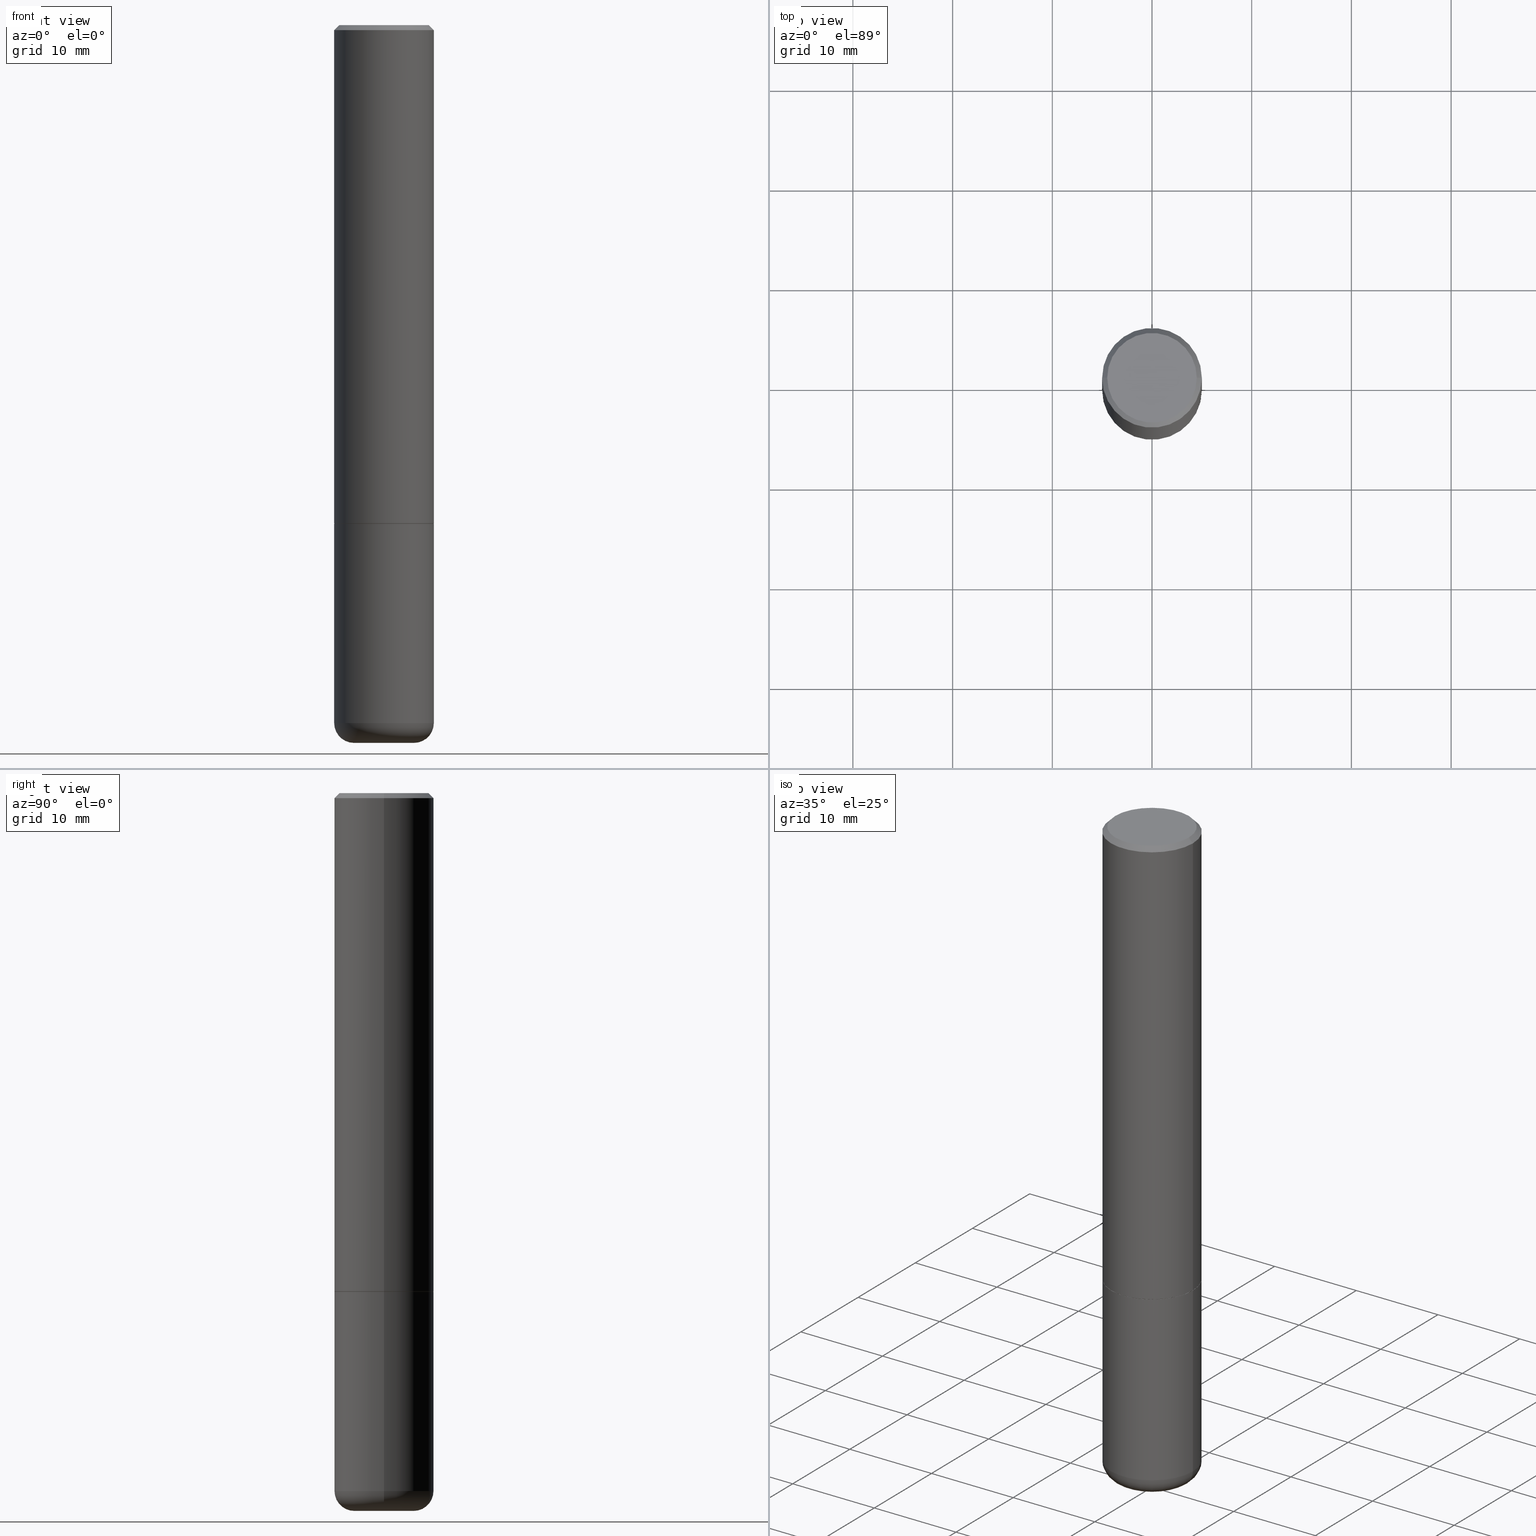
[diagram: canonical four-view strip — front | top / right | iso, engineering-drawing reading convention]
A machine part, canonical four-view strip (front | top / right | iso — engineering-drawing reading convention). The complete STEP part file that produces these views, byte-faithful:
ISO-10303-21;
HEADER;
FILE_DESCRIPTION (( 'STEP AP203' ),
    '1' );
FILE_NAME ('47014.STEP',
    '2024-03-05T11:18:33',
    ( '' ),
    ( '' ),
    'SwSTEP 2.0',
    'SolidWorks 2023',
    '' );
FILE_SCHEMA (( 'CONFIG_CONTROL_DESIGN' ));
ENDSEC;

DATA;
#1 = FACE_OUTER_BOUND ( 'NONE', #279, .T. ) ;
#2 = CLOSED_SHELL ( 'NONE', ( #265, #116, #124, #92, #5, #361, #45, #389 ) ) ;
#3 = CIRCLE ( 'NONE', #354, 0.07869999999999996443 ) ;
#4 = DIRECTION ( 'NONE',  ( -2.445468806185136597E-29, 3.491481338843145583E-15, 1.000000000000000000 ) ) ;
#5 = ADVANCED_FACE ( 'NONE', ( #127 ), #247, .T. ) ;
#6 = CARTESIAN_POINT ( 'NONE',  ( -0.1181500000000000050, -8.782667179417266182E-15, -2.755900000000000016 ) ) ;
#7 = CARTESIAN_POINT ( 'NONE',  ( -0.1968500000000002192, -2.070956205131615845E-15, -1.967500000000000027 ) ) ;
#8 = CIRCLE ( 'NONE', #19, 0.1181500000000000189 ) ;
#9 = APPROVAL_PERSON_ORGANIZATION ( #214, #135, #246 ) ;
#10 = CARTESIAN_POINT ( 'NONE',  ( -0.1958499999999999963, -5.481383067526576505E-15, -1.968500000000000361 ) ) ;
#11 = CONICAL_SURFACE ( 'NONE', #141, 0.1958499999999999963, 0.7853981633973801113 ) ;
#12 = EDGE_CURVE ( 'NONE', #13, #322, #226, .T. ) ;
#13 = VERTEX_POINT ( 'NONE', #250 ) ;
#14 = DIRECTION ( 'NONE',  ( -2.445468806185136877E-29, 3.491481338843145188E-15, 1.000000000000000000 ) ) ;
#15 = ORIENTED_EDGE ( 'NONE', *, *, #261, .T. ) ;
#16 = MANIFOLD_SOLID_BREP ( 'Body-Move/Copy2[2]', #2 ) ;
#17 = DIRECTION ( 'NONE',  ( -6.982962677686266711E-15, -1.000000000000000000, 3.491481338843145583E-15 ) ) ;
#18 = DIRECTION ( 'NONE',  ( -2.445468806185136597E-29, 3.491481338843145583E-15, 1.000000000000000000 ) ) ;
#19 = AXIS2_PLACEMENT_3D ( 'NONE', #300, #138, #68 ) ;
#20 = AXIS2_PLACEMENT_3D ( 'NONE', #235, #18, #398 ) ;
#21 = EDGE_LOOP ( 'NONE', ( #95, #149 ) ) ;
#22 = DIRECTION ( 'NONE',  ( -1.000000000000000000, 6.982962677686265922E-15, -4.876176775795935793E-29 ) ) ;
#23 = ORIENTED_EDGE ( 'NONE', *, *, #353, .T. ) ;
#24 = DIRECTION ( 'NONE',  ( 2.438088387897960049E-29, -3.491481338843145188E-15, -1.000000000000000000 ) ) ;
#25 = DIRECTION ( 'NONE',  ( 1.000000000000000000, -6.982962677686266711E-15, 4.876176775795935793E-29 ) ) ;
#26 = EDGE_CURVE ( 'NONE', #60, #158, #374, .T. ) ;
#27 = ORIENTED_EDGE ( 'NONE', *, *, #224, .T. ) ;
#28 = CALENDAR_DATE ( 2024, 5, 3 ) ;
#29 = EDGE_LOOP ( 'NONE', ( #185, #83, #286, #307 ) ) ;
#30 = EDGE_CURVE ( 'NONE', #215, #101, #392, .T. ) ;
#31 = PERSON_AND_ORGANIZATION ( #313, #260 ) ;
#32 = DIRECTION ( 'NONE',  ( 1.000000000000000000, -6.982962677686265922E-15, 4.876176775795935793E-29 ) ) ;
#33 = CIRCLE ( 'NONE', #91, 0.1968500000000000250 ) ;
#34 = CARTESIAN_POINT ( 'NONE',  ( -0.1968500000000000250, 1.304766576325678705E-15, -0.02000000000000004205 ) ) ;
#35 = CALENDAR_DATE ( 2024, 5, 3 ) ;
#36 = DIRECTION ( 'NONE',  ( 2.445468806185136597E-29, -3.491481338843145583E-15, -1.000000000000000000 ) ) ;
#37 = PERSON_AND_ORGANIZATION ( #313, #260 ) ;
#38 = CARTESIAN_POINT ( 'NONE',  ( 4.811459876169256232E-29, -6.869489534173888700E-15, -1.967500000000000027 ) ) ;
#39 = EDGE_CURVE ( 'NONE', #373, #255, #40, .T. ) ;
#40 = CIRCLE ( 'NONE', #258, 0.1968500000000002192 ) ;
#41 =( GEOMETRIC_REPRESENTATION_CONTEXT ( 3 ) GLOBAL_UNCERTAINTY_ASSIGNED_CONTEXT ( ( #251 ) ) GLOBAL_UNIT_ASSIGNED_CONTEXT ( ( #345, #276, #405 ) ) REPRESENTATION_CONTEXT ( 'NONE', 'WORKASPACE' ) );
#42 = DATE_TIME_ROLE ( 'classification_date' ) ;
#43 = LINE ( 'NONE', #383, #76 ) ;
#44 = DIRECTION ( 'NONE',  ( 0.7071067811865462405, -7.319954787623251312E-15, -0.7071067811865486830 ) ) ;
#45 = ADVANCED_FACE ( 'NONE', ( #1 ), #363, .F. ) ;
#46 = CARTESIAN_POINT ( 'NONE',  ( 6.739467482965618232E-29, -9.622173421717824390E-15, -2.755900000000000016 ) ) ;
#47 = VERTEX_POINT ( 'NONE', #390 ) ;
#48 = VECTOR ( 'NONE', #225, 39.37007874015748143 ) ;
#49 = LINE ( 'NONE', #331, #193 ) ;
#50 = DIRECTION ( 'NONE',  ( -2.445468806185136597E-29, 3.491481338843145583E-15, 1.000000000000000000 ) ) ;
#51 = EDGE_CURVE ( 'NONE', #158, #60, #111, .T. ) ;
#52 = CARTESIAN_POINT ( 'NONE',  ( 6.931925878012387517E-29, -9.896953003084780885E-15, -2.834600000000000009 ) ) ;
#53 = FACE_OUTER_BOUND ( 'NONE', #66, .T. ) ;
#54 = AXIS2_PLACEMENT_3D ( 'NONE', #6, #139, #292 ) ;
#55 = ORIENTED_EDGE ( 'NONE', *, *, #261, .F. ) ;
#56 = APPROVAL_STATUS ( 'not_yet_approved' ) ;
#57 = ORIENTED_EDGE ( 'NONE', *, *, #229, .T. ) ;
#58 = APPROVAL ( #194, 'UNSPECIFIED' ) ;
#59 = PERSON_AND_ORGANIZATION_ROLE ( 'design_owner' ) ;
#60 = VERTEX_POINT ( 'NONE', #163 ) ;
#61 = ORIENTED_EDGE ( 'NONE', *, *, #79, .T. ) ;
#62 = CIRCLE ( 'NONE', #416, 0.1968500000000002192 ) ;
#63 = COORDINATED_UNIVERSAL_TIME_OFFSET ( 5, 0, .BEHIND. ) ;
#64 = ORIENTED_EDGE ( 'NONE', *, *, #26, .T. ) ;
#65 = PRODUCT_DEFINITION ( 'UNKNOWN', '', #381, #170 ) ;
#66 = EDGE_LOOP ( 'NONE', ( #171, #57 ) ) ;
#67 = PERSON_AND_ORGANIZATION_ROLE ( 'classification_officer' ) ;
#68 = DIRECTION ( 'NONE',  ( 1.000000000000000000, -6.982962677686265922E-15, 0.000000000000000000 ) ) ;
#69 = AXIS2_PLACEMENT_3D ( 'NONE', #134, #356, #325 ) ;
#70 = CC_DESIGN_SECURITY_CLASSIFICATION ( #311, ( #381 ) ) ;
#71 = CYLINDRICAL_SURFACE ( 'NONE', #306, 0.1968500000000000250 ) ;
#72 = EDGE_CURVE ( 'NONE', #47, #394, #8, .T. ) ;
#73 = CARTESIAN_POINT ( 'NONE',  ( 0.1968500000000001082, -1.374596203102542397E-15, 9.598753983154305062E-30 ) ) ;
#74 = CALENDAR_DATE ( 2024, 5, 3 ) ;
#75 = FACE_OUTER_BOUND ( 'NONE', #402, .T. ) ;
#76 = VECTOR ( 'NONE', #302, 39.37007874015748143 ) ;
#77 = TOROIDAL_SURFACE ( 'NONE', #84, 0.1181500000000000050, 0.07869999999999995055 ) ;
#78 = CARTESIAN_POINT ( 'NONE',  ( 0.000000000000000000, 0.000000000000000000, 0.000000000000000000 ) ) ;
#79 = EDGE_CURVE ( 'NONE', #215, #217, #43, .T. ) ;
#80 = FACE_OUTER_BOUND ( 'NONE', #244, .T. ) ;
#81 = ORIENTED_EDGE ( 'NONE', *, *, #287, .F. ) ;
#82 = CARTESIAN_POINT ( 'NONE',  ( -0.1968500000000000250, -6.848873843271521050E-15, -1.968500000000000139 ) ) ;
#83 = ORIENTED_EDGE ( 'NONE', *, *, #280, .T. ) ;
#84 = AXIS2_PLACEMENT_3D ( 'NONE', #46, #115, #365 ) ;
#85 = DIRECTION ( 'NONE',  ( -2.445468806185136597E-29, 3.491481338843145583E-15, 1.000000000000000000 ) ) ;
#86 = FACE_OUTER_BOUND ( 'NONE', #21, .T. ) ;
#87 = ADVANCED_FACE ( 'NONE', ( #75 ), #273, .T. ) ;
#88 = APPROVAL_DATE_TIME ( #254, #135 ) ;
#89 = AXIS2_PLACEMENT_3D ( 'NONE', #296, #136, #259 ) ;
#90 = ORIENTED_EDGE ( 'NONE', *, *, #229, .F. ) ;
#91 = AXIS2_PLACEMENT_3D ( 'NONE', #275, #168, #143 ) ;
#92 = ADVANCED_FACE ( 'NONE', ( #327 ), #231, .T. ) ;
#93 = LINE ( 'NONE', #412, #301 ) ;
#94 = ORIENTED_EDGE ( 'NONE', *, *, #12, .T. ) ;
#95 = ORIENTED_EDGE ( 'NONE', *, *, #338, .F. ) ;
#96 = APPLICATION_PROTOCOL_DEFINITION ( 'international standard', 'config_control_design', 1994, #130 ) ;
#97 = EDGE_CURVE ( 'NONE', #373, #60, #102, .T. ) ;
#98 = ORIENTED_EDGE ( 'NONE', *, *, #97, .T. ) ;
#99 = AXIS2_PLACEMENT_3D ( 'NONE', #352, #330, #167 ) ;
#100 = APPROVAL_PERSON_ORGANIZATION ( #283, #148, #219 ) ;
#101 = VERTEX_POINT ( 'NONE', #262 ) ;
#102 = LINE ( 'NONE', #73, #48 ) ;
#103 = DIRECTION ( 'NONE',  ( -1.000000000000000000, 6.982962677686265922E-15, -4.876176775795935793E-29 ) ) ;
#104 = AXIS2_PLACEMENT_3D ( 'NONE', #191, #36, #328 ) ;
#105 = ADVANCED_FACE ( 'NONE', ( #109 ), #71, .T. ) ;
#106 = CARTESIAN_POINT ( 'NONE',  ( 6.739467482965618232E-29, -9.622173421717824390E-15, -2.755900000000000016 ) ) ;
#107 = PRODUCT ( '47014', '47014', '', ( #216 ) ) ;
#108 = DATE_AND_TIME ( #35, #213 ) ;
#109 = FACE_OUTER_BOUND ( 'NONE', #346, .T. ) ;
#110 = DIRECTION ( 'NONE',  ( -2.445468806185136597E-29, 3.491481338843145583E-15, 1.000000000000000000 ) ) ;
#111 = CIRCLE ( 'NONE', #177, 0.1968500000000000250 ) ;
#112 = AXIS2_PLACEMENT_3D ( 'NONE', #272, #50, #120 ) ;
#113 = DIRECTION ( 'NONE',  ( 1.000000000000000000, -6.982962677686265922E-15, 0.000000000000000000 ) ) ;
#114 = CARTESIAN_POINT ( 'NONE',  ( 0.000000000000000000, 0.000000000000000000, 0.000000000000000000 ) ) ;
#115 = DIRECTION ( 'NONE',  ( -2.445468806185136597E-29, 3.491481338843145583E-15, 1.000000000000000000 ) ) ;
#116 = ADVANCED_FACE ( 'NONE', ( #196 ), #257, .T. ) ;
#117 = AXIS2_PLACEMENT_3D ( 'NONE', #385, #256, #32 ) ;
#118 = AXIS2_PLACEMENT_3D ( 'NONE', #377, #249, #179 ) ;
#119 = CARTESIAN_POINT ( 'NONE',  ( -2.922783960138615261E-45, 4.172960877065252270E-31, 1.195183497228115035E-16 ) ) ;
#120 = DIRECTION ( 'NONE',  ( 1.000000000000000000, -6.982962677686266711E-15, 4.879147720081023088E-29 ) ) ;
#121 = ORIENTED_EDGE ( 'NONE', *, *, #297, .T. ) ;
#122 = PERSON_AND_ORGANIZATION ( #313, #260 ) ;
#123 = ORIENTED_EDGE ( 'NONE', *, *, #314, .F. ) ;
#124 = ADVANCED_FACE ( 'NONE', ( #164 ), #407, .T. ) ;
#125 = DIRECTION ( 'NONE',  ( -2.445468806185136597E-29, 3.491481338843145583E-15, 1.000000000000000000 ) ) ;
#126 = DIRECTION ( 'NONE',  ( 0.7071067811864992780, -2.468850131081751401E-15, 0.7071067811865957564 ) ) ;
#127 = FACE_OUTER_BOUND ( 'NONE', #147, .T. ) ;
#128 = PERSON_AND_ORGANIZATION ( #313, #260 ) ;
#129 = ORIENTED_EDGE ( 'NONE', *, *, #321, .F. ) ;
#130 = APPLICATION_CONTEXT ( 'configuration controlled 3d designs of mechanical parts and assemblies' ) ;
#131 = COORDINATED_UNIVERSAL_TIME_OFFSET ( 5, 0, .BEHIND. ) ;
#132 = EDGE_LOOP ( 'NONE', ( #397, #344, #15, #129 ) ) ;
#133 = DIRECTION ( 'NONE',  ( -2.445468806185136597E-29, 3.491481338843145583E-15, 1.000000000000000000 ) ) ;
#134 = CARTESIAN_POINT ( 'NONE',  ( 4.890937612370283668E-31, -6.982962677686305168E-17, -0.02000000000000004205 ) ) ;
#135 = APPROVAL ( #56, 'UNSPECIFIED' ) ;
#136 = DIRECTION ( 'NONE',  ( -2.445468806185136597E-29, 3.491481338843145583E-15, 1.000000000000000000 ) ) ;
#137 = AXIS2_PLACEMENT_3D ( 'NONE', #319, #315, #312 ) ;
#138 = DIRECTION ( 'NONE',  ( -2.445468806185136597E-29, 3.491481338843145583E-15, 1.000000000000000000 ) ) ;
#139 = DIRECTION ( 'NONE',  ( 7.105427357601001859E-15, 1.000000000000000000, -3.491481338843145583E-15 ) ) ;
#140 = CARTESIAN_POINT ( 'NONE',  ( 4.813905344975441835E-29, -6.872981015512731707E-15, -1.968500000000000139 ) ) ;
#141 = AXIS2_PLACEMENT_3D ( 'NONE', #367, #85, #207 ) ;
#142 = CARTESIAN_POINT ( 'NONE',  ( -0.1968500000000000250, 1.398703375343757393E-15, -9.682923725166783677E-30 ) ) ;
#143 = DIRECTION ( 'NONE',  ( 1.000000000000000000, -6.982962677686267499E-15, 0.000000000000000000 ) ) ;
#144 = EDGE_CURVE ( 'NONE', #47, #101, #340, .T. ) ;
#145 = LINE ( 'NONE', #142, #184 ) ;
#146 = DIRECTION ( 'NONE',  ( -2.445468806185136597E-29, 3.491481338843145583E-15, 1.000000000000000000 ) ) ;
#147 = EDGE_LOOP ( 'NONE', ( #415, #23, #98, #211 ) ) ;
#148 = APPROVAL ( #409, 'UNSPECIFIED' ) ;
#149 = ORIENTED_EDGE ( 'NONE', *, *, #72, .F. ) ;
#150 = DIRECTION ( 'NONE',  ( -1.000000000000000000, 6.982962677686265922E-15, -4.876176775795935793E-29 ) ) ;
#151 = ORIENTED_EDGE ( 'NONE', *, *, #51, .T. ) ;
#152 = CIRCLE ( 'NONE', #386, 0.1968500000000000250 ) ;
#153 = PLANE ( 'NONE',  #341 ) ;
#154 = LOCAL_TIME ( 6, 18, 33.00000000000000000, #288 ) ;
#155 = ORIENTED_EDGE ( 'NONE', *, *, #204, .F. ) ;
#156 = MANIFOLD_SOLID_BREP ( 'Body-Move/Copy2[1]', #253 ) ;
#157 = LENGTH_MEASURE_WITH_UNIT ( LENGTH_MEASURE( 0.02539999999999999897 ), #342 );
#158 = VERTEX_POINT ( 'NONE', #34 ) ;
#159 = DATE_AND_TIME ( #28, #324 ) ;
#160 = EDGE_LOOP ( 'NONE', ( #90, #336, #64, #404 ) ) ;
#161 = DIRECTION ( 'NONE',  ( 1.000000000000000000, -6.982962677686265922E-15, 0.000000000000000000 ) ) ;
#162 = CARTESIAN_POINT ( 'NONE',  ( 4.890937612370283668E-31, -6.982962677686305168E-17, -0.02000000000000004205 ) ) ;
#163 = CARTESIAN_POINT ( 'NONE',  ( 0.1968500000000000250, -1.420318657638189122E-15, -0.02000000000000004205 ) ) ;
#164 = FACE_OUTER_BOUND ( 'NONE', #160, .T. ) ;
#165 = CC_DESIGN_APPROVAL ( #148, ( #65 ) ) ;
#166 = PRODUCT_RELATED_PRODUCT_CATEGORY ( 'detail', '', ( #107 ) ) ;
#167 = DIRECTION ( 'NONE',  ( 1.000000000000000000, -6.982962677686266711E-15, 4.876176775795935793E-29 ) ) ;
#168 = DIRECTION ( 'NONE',  ( -2.445468806185136597E-29, 3.491481338843145583E-15, 1.000000000000000000 ) ) ;
#169 = DIRECTION ( 'NONE',  ( 1.000000000000000000, -6.982962677686266711E-15, 4.879147720081023088E-29 ) ) ;
#170 = DESIGN_CONTEXT ( 'detailed design', #130, 'design' ) ;
#171 = ORIENTED_EDGE ( 'NONE', *, *, #234, .T. ) ;
#172 = AXIS2_PLACEMENT_3D ( 'NONE', #228, #388, #230 ) ;
#173 = CARTESIAN_POINT ( 'NONE',  ( -0.1968500000000001082, 1.398703375343757985E-15, -9.682923725166787881E-30 ) ) ;
#174 = LINE ( 'NONE', #10, #274 ) ;
#175 = DIRECTION ( 'NONE',  ( 2.438088387897960049E-29, -3.491481338843145188E-15, -1.000000000000000000 ) ) ;
#176 = CC_DESIGN_PERSON_AND_ORGANIZATION_ASSIGNMENT ( #128, #59, ( #107 ) ) ;
#177 = AXIS2_PLACEMENT_3D ( 'NONE', #162, #4, #418 ) ;
#178 = VECTOR ( 'NONE', #14, 39.37007874015748143 ) ;
#179 = DIRECTION ( 'NONE',  ( 1.000000000000000000, 0.000000000000000000, 0.000000000000000000 ) ) ;
#180 = ORIENTED_EDGE ( 'NONE', *, *, #30, .T. ) ;
#181 = APPLICATION_PROTOCOL_DEFINITION ( 'international standard', 'config_control_design', 1994, #285 ) ;
#182 = ORIENTED_EDGE ( 'NONE', *, *, #372, .F. ) ;
#183 = DATE_AND_TIME ( #403, #154 ) ;
#184 = VECTOR ( 'NONE', #393, 39.37007874015748143 ) ;
#185 = ORIENTED_EDGE ( 'NONE', *, *, #39, .T. ) ;
#186 = ADVANCED_FACE ( 'NONE', ( #417 ), #263, .F. ) ;
#187 = CARTESIAN_POINT ( 'NONE',  ( 0.1968500000000002192, -8.244085737276431886E-15, -1.967500000000000027 ) ) ;
#188 = EDGE_LOOP ( 'NONE', ( #123, #317, #121, #151 ) ) ;
#189 = PERSON_AND_ORGANIZATION ( #313, #260 ) ;
#190 = VERTEX_POINT ( 'NONE', #227 ) ;
#191 = CARTESIAN_POINT ( 'NONE',  ( 4.890937612370283668E-31, -6.982962677686305168E-17, -0.02000000000000004205 ) ) ;
#192 = CIRCLE ( 'NONE', #137, 0.1968500000000000250 ) ;
#193 = VECTOR ( 'NONE', #44, 39.37007874015748854 ) ;
#194 = APPROVAL_STATUS ( 'not_yet_approved' ) ;
#195 = PRODUCT_DEFINITION_SHAPE ( 'NONE', 'NONE',  #65 ) ;
#196 = FACE_OUTER_BOUND ( 'NONE', #29, .T. ) ;
#197 = COORDINATED_UNIVERSAL_TIME_OFFSET ( 5, 0, .BEHIND. ) ;
#198 = DIRECTION ( 'NONE',  ( 1.000000000000000000, -6.982962677686265922E-15, 4.876176775795935793E-29 ) ) ;
#199 = SHAPE_DEFINITION_REPRESENTATION ( #195, #281 ) ;
#200 = DIRECTION ( 'NONE',  ( -2.445468806185136597E-29, 3.491481338843145583E-15, 1.000000000000000000 ) ) ;
#201 = CC_DESIGN_APPROVAL ( #58, ( #311 ) ) ;
#202 = CARTESIAN_POINT ( 'NONE',  ( -0.1968500000000000250, 1.304766576325678705E-15, -0.02000000000000004205 ) ) ;
#203 = CYLINDRICAL_SURFACE ( 'NONE', #291, 0.1968500000000000250 ) ;
#204 = EDGE_CURVE ( 'NONE', #322, #13, #335, .T. ) ;
#205 = LINE ( 'NONE', #202, #375 ) ;
#206 = CIRCLE ( 'NONE', #368, 0.1768499999999999239 ) ;
#207 = DIRECTION ( 'NONE',  ( 1.000000000000000000, -6.982962677686268288E-15, 0.000000000000000000 ) ) ;
#208 = PLANE ( 'NONE',  #282 ) ;
#209 = CC_DESIGN_PERSON_AND_ORGANIZATION_ASSIGNMENT ( #31, #351, ( #381 ) ) ;
#210 = CARTESIAN_POINT ( 'NONE',  ( 1.234936949548815604E-15, 0.1768499999999999239, -5.577092999130041947E-16 ) ) ;
#211 = ORIENTED_EDGE ( 'NONE', *, *, #51, .F. ) ;
#212 = AXIS2_PLACEMENT_3D ( 'NONE', #106, #360, #358 ) ;
#213 = LOCAL_TIME ( 6, 18, 33.00000000000000000, #295 ) ;
#214 = PERSON_AND_ORGANIZATION ( #313, #260 ) ;
#215 = VERTEX_POINT ( 'NONE', #310 ) ;
#216 = MECHANICAL_CONTEXT ( 'NONE', #285, 'mechanical' ) ;
#217 = VERTEX_POINT ( 'NONE', #334 ) ;
#218 = CC_DESIGN_PERSON_AND_ORGANIZATION_ASSIGNMENT ( #293, #387, ( #381 ) ) ;
#219 = APPROVAL_ROLE ( '' ) ;
#220 = ORIENTED_EDGE ( 'NONE', *, *, #12, .F. ) ;
#221 = CC_DESIGN_APPROVAL ( #135, ( #381 ) ) ;
#222 = ORIENTED_EDGE ( 'NONE', *, *, #326, .T. ) ;
#223 = ORIENTED_EDGE ( 'NONE', *, *, #144, .T. ) ;
#224 = EDGE_CURVE ( 'NONE', #242, #217, #152, .T. ) ;
#225 = DIRECTION ( 'NONE',  ( -2.445468806185136877E-29, 3.491481338843145188E-15, 1.000000000000000000 ) ) ;
#226 = CIRCLE ( 'NONE', #362, 0.1958499999999999963 ) ;
#227 = CARTESIAN_POINT ( 'NONE',  ( -0.1768499999999999239, 1.269851762937247450E-15, 1.195183497228027521E-16 ) ) ;
#228 = CARTESIAN_POINT ( 'NONE',  ( 6.739467482965618232E-29, -9.622173421717824390E-15, -2.755900000000000016 ) ) ;
#229 = EDGE_CURVE ( 'NONE', #240, #190, #206, .T. ) ;
#230 = DIRECTION ( 'NONE',  ( 1.000000000000000000, -6.982962677686267499E-15, 0.000000000000000000 ) ) ;
#231 = CONICAL_SURFACE ( 'NONE', #69, 0.1968500000000000250, 0.7853981633974466137 ) ;
#232 = DIRECTION ( 'NONE',  ( 1.000000000000000000, -6.982962677686267499E-15, 0.000000000000000000 ) ) ;
#233 = ORIENTED_EDGE ( 'NONE', *, *, #411, .T. ) ;
#234 = EDGE_CURVE ( 'NONE', #190, #240, #399, .T. ) ;
#235 = CARTESIAN_POINT ( 'NONE',  ( 4.813905344975442395E-29, -6.872981015512733285E-15, -1.968500000000000361 ) ) ;
#236 = DIRECTION ( 'NONE',  ( 1.000000000000000000, -6.982962677686273021E-15, 0.000000000000000000 ) ) ;
#237 = CONICAL_SURFACE ( 'NONE', #20, 0.1958499999999999963, 0.7853981633973801113 ) ;
#238 = CC_DESIGN_DATE_AND_TIME_ASSIGNMENT ( #159, #414, ( #65 ) ) ;
#239 = CARTESIAN_POINT ( 'NONE',  ( 6.931925878012387517E-29, -9.896953003084780885E-15, -2.834600000000000009 ) ) ;
#240 = VERTEX_POINT ( 'NONE', #364 ) ;
#241 = LINE ( 'NONE', #173, #178 ) ;
#242 = VERTEX_POINT ( 'NONE', #82 ) ;
#243 = CARTESIAN_POINT ( 'NONE',  ( 0.1181500000000000189, -1.072199004345341266E-14, -2.834600000000000009 ) ) ;
#244 = EDGE_LOOP ( 'NONE', ( #180, #222, #182, #266 ) ) ;
#245 = LOCAL_TIME ( 6, 18, 33.00000000000000000, #131 ) ;
#246 = APPROVAL_ROLE ( '' ) ;
#247 = CYLINDRICAL_SURFACE ( 'NONE', #267, 0.1968500000000001082 ) ;
#248 = CC_DESIGN_DATE_AND_TIME_ASSIGNMENT ( #329, #42, ( #311 ) ) ;
#249 = DIRECTION ( 'NONE',  ( 0.000000000000000000, 0.000000000000000000, 1.000000000000000000 ) ) ;
#250 = CARTESIAN_POINT ( 'NONE',  ( -0.1958499999999999963, -5.476084613178352526E-15, -1.968500000000000361 ) ) ;
#251 = UNCERTAINTY_MEASURE_WITH_UNIT (LENGTH_MEASURE( 1.000000000000000082E-05 ), #345, 'distance_accuracy_value', 'NONE');
#252 = ORIENTED_EDGE ( 'NONE', *, *, #338, .T. ) ;
#253 = CLOSED_SHELL ( 'NONE', ( #303, #87, #186, #105, #349, #366 ) ) ;
#254 = DATE_AND_TIME ( #278, #245 ) ;
#255 = VERTEX_POINT ( 'NONE', #7 ) ;
#256 = DIRECTION ( 'NONE',  ( -2.438088387897960049E-29, 3.491481338843145188E-15, 1.000000000000000000 ) ) ;
#257 = CYLINDRICAL_SURFACE ( 'NONE', #99, 0.1968500000000001082 ) ;
#258 = AXIS2_PLACEMENT_3D ( 'NONE', #38, #110, #161 ) ;
#259 = DIRECTION ( 'NONE',  ( 1.000000000000000000, -6.982962677686268288E-15, 0.000000000000000000 ) ) ;
#260 = ORGANIZATION ( 'UNSPECIFIED', 'UNSPECIFIED', '' ) ;
#261 = EDGE_CURVE ( 'NONE', #394, #215, #3, .T. ) ;
#262 = CARTESIAN_POINT ( 'NONE',  ( -0.1968499999999999694, -8.223470046374067391E-15, -2.755900000000000016 ) ) ;
#263 = PLANE ( 'NONE',  #290 ) ;
#264 = DIRECTION ( 'NONE',  ( -0.7071067811864992780, 7.493145998870180611E-15, 0.7071067811865957564 ) ) ;
#265 = ADVANCED_FACE ( 'NONE', ( #269 ), #237, .T. ) ;
#266 = ORIENTED_EDGE ( 'NONE', *, *, #79, .F. ) ;
#267 = AXIS2_PLACEMENT_3D ( 'NONE', #406, #125, #25 ) ;
#268 = CIRCLE ( 'NONE', #337, 0.1181500000000000189 ) ;
#269 = FACE_OUTER_BOUND ( 'NONE', #320, .T. ) ;
#270 = CARTESIAN_POINT ( 'NONE',  ( 0.1958499999999999963, -8.240594255937588879E-15, -1.968500000000000361 ) ) ;
#271 = EDGE_LOOP ( 'NONE', ( #316, #27 ) ) ;
#272 = CARTESIAN_POINT ( 'NONE',  ( -2.922783960138615261E-45, 4.172960877065252270E-31, 1.195183497228115035E-16 ) ) ;
#273 = TOROIDAL_SURFACE ( 'NONE', #212, 0.1181500000000000050, 0.07869999999999995055 ) ;
#274 = VECTOR ( 'NONE', #264, 39.37007874015748143 ) ;
#275 = CARTESIAN_POINT ( 'NONE',  ( 6.739467482965618232E-29, -9.622173421717824390E-15, -2.755900000000000016 ) ) ;
#276 =( NAMED_UNIT ( * ) PLANE_ANGLE_UNIT ( ) SI_UNIT ( $, .RADIAN. ) );
#277 = ORIENTED_EDGE ( 'NONE', *, *, #287, .T. ) ;
#278 = CALENDAR_DATE ( 2024, 5, 3 ) ;
#279 = EDGE_LOOP ( 'NONE', ( #155, #220 ) ) ;
#280 = EDGE_CURVE ( 'NONE', #255, #158, #241, .T. ) ;
#281 = ADVANCED_BREP_SHAPE_REPRESENTATION ( '47014', ( #156, #16, #118 ), #41 ) ;
#282 = AXIS2_PLACEMENT_3D ( 'NONE', #52, #175, #22 ) ;
#283 = PERSON_AND_ORGANIZATION ( #313, #260 ) ;
#284 = DIRECTION ( 'NONE',  ( -2.445468806185136597E-29, 3.491481338843145583E-15, 1.000000000000000000 ) ) ;
#285 = APPLICATION_CONTEXT ( 'configuration controlled 3d designs of mechanical parts and assemblies' ) ;
#286 = ORIENTED_EDGE ( 'NONE', *, *, #26, .F. ) ;
#287 = EDGE_CURVE ( 'NONE', #13, #255, #174, .T. ) ;
#288 = COORDINATED_UNIVERSAL_TIME_OFFSET ( 5, 0, .BEHIND. ) ;
#289 = ORIENTED_EDGE ( 'NONE', *, *, #30, .F. ) ;
#290 = AXIS2_PLACEMENT_3D ( 'NONE', #391, #294, #103 ) ;
#291 = AXIS2_PLACEMENT_3D ( 'NONE', #114, #146, #309 ) ;
#292 = DIRECTION ( 'NONE',  ( -1.000000000000000000, 7.105427357600995548E-15, 0.000000000000000000 ) ) ;
#293 = PERSON_AND_ORGANIZATION ( #313, #260 ) ;
#294 = DIRECTION ( 'NONE',  ( 2.438088387897960049E-29, -3.491481338843145188E-15, -1.000000000000000000 ) ) ;
#295 = COORDINATED_UNIVERSAL_TIME_OFFSET ( 5, 0, .BEHIND. ) ;
#296 = CARTESIAN_POINT ( 'NONE',  ( 4.813905344975442395E-29, -6.872981015512733285E-15, -1.968500000000000361 ) ) ;
#297 = EDGE_CURVE ( 'NONE', #190, #158, #205, .T. ) ;
#298 = APPROVAL_DATE_TIME ( #108, #58 ) ;
#299 = AXIS2_PLACEMENT_3D ( 'NONE', #378, #133, #323 ) ;
#300 = CARTESIAN_POINT ( 'NONE',  ( 6.931925878012387517E-29, -9.896953003084780885E-15, -2.834600000000000009 ) ) ;
#301 = VECTOR ( 'NONE', #126, 39.37007874015748143 ) ;
#302 = DIRECTION ( 'NONE',  ( -2.445468806185136877E-29, 3.491481338843145188E-15, 1.000000000000000000 ) ) ;
#303 = ADVANCED_FACE ( 'NONE', ( #80 ), #203, .T. ) ;
#304 = DIRECTION ( 'NONE',  ( -2.445468806185136597E-29, 3.491481338843145583E-15, 1.000000000000000000 ) ) ;
#305 = CARTESIAN_POINT ( 'NONE',  ( 4.811459876169256232E-29, -6.869489534173888700E-15, -1.967500000000000027 ) ) ;
#306 = AXIS2_PLACEMENT_3D ( 'NONE', #78, #200, #198 ) ;
#307 = ORIENTED_EDGE ( 'NONE', *, *, #97, .F. ) ;
#308 = DIRECTION ( 'NONE',  ( -2.445468806185136597E-29, 3.491481338843145583E-15, 1.000000000000000000 ) ) ;
#309 = DIRECTION ( 'NONE',  ( 1.000000000000000000, -6.982962677686265922E-15, 4.876176775795935793E-29 ) ) ;
#310 = CARTESIAN_POINT ( 'NONE',  ( 0.1968499999999999694, -1.099676962482036600E-14, -2.755900000000000016 ) ) ;
#311 = SECURITY_CLASSIFICATION ( '', '', #355 ) ;
#312 = DIRECTION ( 'NONE',  ( 1.000000000000000000, -6.982962677686267499E-15, 0.000000000000000000 ) ) ;
#313 = PERSON ( 'UNSPECIFIED', 'UNSPECIFIED', 'UNSPECIFIED', ('UNSPECIFIED'), ('UNSPECIFIED'), ('UNSPECIFIED') ) ;
#314 = EDGE_CURVE ( 'NONE', #240, #60, #49, .T. ) ;
#315 = DIRECTION ( 'NONE',  ( -2.445468806185136597E-29, 3.491481338843145583E-15, 1.000000000000000000 ) ) ;
#316 = ORIENTED_EDGE ( 'NONE', *, *, #372, .T. ) ;
#317 = ORIENTED_EDGE ( 'NONE', *, *, #234, .F. ) ;
#318 = LOCAL_TIME ( 6, 18, 33.00000000000000000, #197 ) ;
#319 = CARTESIAN_POINT ( 'NONE',  ( 4.813905344975441835E-29, -6.872981015512731707E-15, -1.968500000000000139 ) ) ;
#320 = EDGE_LOOP ( 'NONE', ( #348, #277, #380, #350 ) ) ;
#321 = EDGE_CURVE ( 'NONE', #101, #215, #33, .T. ) ;
#322 = VERTEX_POINT ( 'NONE', #270 ) ;
#323 = DIRECTION ( 'NONE',  ( 1.000000000000000000, -6.982962677686265922E-15, 0.000000000000000000 ) ) ;
#324 = LOCAL_TIME ( 6, 18, 33.00000000000000000, #63 ) ;
#325 = DIRECTION ( 'NONE',  ( -1.000000000000000000, 6.982962677686265922E-15, 0.000000000000000000 ) ) ;
#326 = EDGE_CURVE ( 'NONE', #101, #242, #145, .T. ) ;
#327 = FACE_OUTER_BOUND ( 'NONE', #188, .T. ) ;
#328 = DIRECTION ( 'NONE',  ( -1.000000000000000000, 6.982962677686265922E-15, 0.000000000000000000 ) ) ;
#329 = DATE_AND_TIME ( #74, #318 ) ;
#330 = DIRECTION ( 'NONE',  ( -2.445468806185136597E-29, 3.491481338843145583E-15, 1.000000000000000000 ) ) ;
#331 = CARTESIAN_POINT ( 'NONE',  ( 0.1968500000000000250, -1.420318657638189122E-15, -0.02000000000000004205 ) ) ;
#332 = FACE_OUTER_BOUND ( 'NONE', #132, .T. ) ;
#333 = ORIENTED_EDGE ( 'NONE', *, *, #224, .F. ) ;
#334 = CARTESIAN_POINT ( 'NONE',  ( 0.1968500000000000250, -8.247577218615273316E-15, -1.968500000000000139 ) ) ;
#335 = CIRCLE ( 'NONE', #89, 0.1958499999999999963 ) ;
#336 = ORIENTED_EDGE ( 'NONE', *, *, #314, .T. ) ;
#337 = AXIS2_PLACEMENT_3D ( 'NONE', #239, #304, #113 ) ;
#338 = EDGE_CURVE ( 'NONE', #394, #47, #268, .T. ) ;
#339 = FACE_OUTER_BOUND ( 'NONE', #382, .T. ) ;
#340 = CIRCLE ( 'NONE', #54, 0.07869999999999996443 ) ;
#341 = AXIS2_PLACEMENT_3D ( 'NONE', #210, #24, #150 ) ;
#342 =( LENGTH_UNIT ( ) NAMED_UNIT ( * ) SI_UNIT ( $, .METRE. ) );
#343 = ORIENTED_EDGE ( 'NONE', *, *, #326, .F. ) ;
#344 = ORIENTED_EDGE ( 'NONE', *, *, #72, .T. ) ;
#345 =( CONVERSION_BASED_UNIT ( 'INCH', #157 ) LENGTH_UNIT ( ) NAMED_UNIT ( #357 ) );
#346 = EDGE_LOOP ( 'NONE', ( #343, #413, #61, #333 ) ) ;
#347 = PERSON_AND_ORGANIZATION_ROLE ( 'creator' ) ;
#348 = ORIENTED_EDGE ( 'NONE', *, *, #204, .T. ) ;
#349 = ADVANCED_FACE ( 'NONE', ( #332 ), #77, .T. ) ;
#350 = ORIENTED_EDGE ( 'NONE', *, *, #411, .F. ) ;
#351 = PERSON_AND_ORGANIZATION_ROLE ( 'design_supplier' ) ;
#352 = CARTESIAN_POINT ( 'NONE',  ( 0.000000000000000000, 0.000000000000000000, 0.000000000000000000 ) ) ;
#353 = EDGE_CURVE ( 'NONE', #255, #373, #62, .T. ) ;
#354 = AXIS2_PLACEMENT_3D ( 'NONE', #401, #17, #236 ) ;
#355 = SECURITY_CLASSIFICATION_LEVEL ( 'unclassified' ) ;
#356 = DIRECTION ( 'NONE',  ( 2.445468806185136597E-29, -3.491481338843145583E-15, -1.000000000000000000 ) ) ;
#357 = DIMENSIONAL_EXPONENTS ( 1.000000000000000000, 0.000000000000000000, 0.000000000000000000, 0.000000000000000000, 0.000000000000000000, 0.000000000000000000, 0.000000000000000000 ) ;
#358 = DIRECTION ( 'NONE',  ( 1.000000000000000000, -6.982962677686269077E-15, 4.883557194083114022E-29 ) ) ;
#359 = APPROVAL_ROLE ( '' ) ;
#360 = DIRECTION ( 'NONE',  ( -2.445468806185136597E-29, 3.491481338843145583E-15, 1.000000000000000000 ) ) ;
#361 = ADVANCED_FACE ( 'NONE', ( #339 ), #11, .T. ) ;
#362 = AXIS2_PLACEMENT_3D ( 'NONE', #376, #284, #410 ) ;
#363 = PLANE ( 'NONE',  #117 ) ;
#364 = CARTESIAN_POINT ( 'NONE',  ( 0.1768499999999999239, -1.316798864272041549E-15, 1.195183497228204275E-16 ) ) ;
#365 = DIRECTION ( 'NONE',  ( 1.000000000000000000, -6.982962677686269077E-15, 4.883557194083114022E-29 ) ) ;
#366 = ADVANCED_FACE ( 'NONE', ( #86 ), #208, .T. ) ;
#367 = CARTESIAN_POINT ( 'NONE',  ( 4.813905344975442395E-29, -6.872981015512733285E-15, -1.968500000000000361 ) ) ;
#368 = AXIS2_PLACEMENT_3D ( 'NONE', #119, #395, #169 ) ;
#369 = DIRECTION ( 'NONE',  ( -2.445468806185136597E-29, 3.491481338843145583E-15, 1.000000000000000000 ) ) ;
#370 = DIRECTION ( 'NONE',  ( -0.7071067811865462405, 2.468850131082243650E-15, -0.7071067811865486830 ) ) ;
#371 = ORIENTED_EDGE ( 'NONE', *, *, #353, .F. ) ;
#372 = EDGE_CURVE ( 'NONE', #217, #242, #192, .T. ) ;
#373 = VERTEX_POINT ( 'NONE', #187 ) ;
#374 = CIRCLE ( 'NONE', #299, 0.1968500000000000250 ) ;
#375 = VECTOR ( 'NONE', #370, 39.37007874015748854 ) ;
#376 = CARTESIAN_POINT ( 'NONE',  ( 4.813905344975442395E-29, -6.872981015512733285E-15, -1.968500000000000361 ) ) ;
#377 = CARTESIAN_POINT ( 'NONE',  ( 0.000000000000000000, 0.000000000000000000, 0.000000000000000000 ) ) ;
#378 = CARTESIAN_POINT ( 'NONE',  ( 4.890937612370283668E-31, -6.982962677686305168E-17, -0.02000000000000004205 ) ) ;
#379 = APPROVAL_DATE_TIME ( #183, #148 ) ;
#380 = ORIENTED_EDGE ( 'NONE', *, *, #39, .F. ) ;
#381 = PRODUCT_DEFINITION_FORMATION_WITH_SPECIFIED_SOURCE ( 'ANY', '', #107, .NOT_KNOWN. ) ;
#382 = EDGE_LOOP ( 'NONE', ( #81, #94, #233, #371 ) ) ;
#383 = CARTESIAN_POINT ( 'NONE',  ( 0.1968500000000000250, -1.374596203102541608E-15, 9.598753983154300858E-30 ) ) ;
#384 = CC_DESIGN_PERSON_AND_ORGANIZATION_ASSIGNMENT ( #122, #347, ( #65 ) ) ;
#385 = CARTESIAN_POINT ( 'NONE',  ( 4.813905344975441835E-29, -6.872981015512731707E-15, -1.968500000000000139 ) ) ;
#386 = AXIS2_PLACEMENT_3D ( 'NONE', #140, #308, #232 ) ;
#387 = PERSON_AND_ORGANIZATION_ROLE ( 'creator' ) ;
#388 = DIRECTION ( 'NONE',  ( -2.445468806185136597E-29, 3.491481338843145583E-15, 1.000000000000000000 ) ) ;
#389 = ADVANCED_FACE ( 'NONE', ( #53 ), #153, .F. ) ;
#390 = CARTESIAN_POINT ( 'NONE',  ( -0.1181500000000000189, -8.640458403579145034E-15, -2.834600000000000009 ) ) ;
#391 = CARTESIAN_POINT ( 'NONE',  ( 4.813905344975441835E-29, -6.872981015512731707E-15, -1.968500000000000139 ) ) ;
#392 = CIRCLE ( 'NONE', #172, 0.1968500000000000250 ) ;
#393 = DIRECTION ( 'NONE',  ( -2.445468806185136877E-29, 3.491481338843145188E-15, 1.000000000000000000 ) ) ;
#394 = VERTEX_POINT ( 'NONE', #243 ) ;
#395 = DIRECTION ( 'NONE',  ( -2.445468806185136597E-29, 3.491481338843145583E-15, 1.000000000000000000 ) ) ;
#396 = DIRECTION ( 'NONE',  ( 1.000000000000000000, -6.982962677686265922E-15, 0.000000000000000000 ) ) ;
#397 = ORIENTED_EDGE ( 'NONE', *, *, #144, .F. ) ;
#398 = DIRECTION ( 'NONE',  ( 1.000000000000000000, -6.982962677686268288E-15, 0.000000000000000000 ) ) ;
#399 = CIRCLE ( 'NONE', #112, 0.1768499999999999239 ) ;
#400 = CC_DESIGN_PERSON_AND_ORGANIZATION_ASSIGNMENT ( #189, #67, ( #311 ) ) ;
#401 = CARTESIAN_POINT ( 'NONE',  ( 0.1181500000000000050, -1.044721046208645774E-14, -2.755900000000000016 ) ) ;
#402 = EDGE_LOOP ( 'NONE', ( #252, #223, #289, #55 ) ) ;
#403 = CALENDAR_DATE ( 2024, 5, 3 ) ;
#404 = ORIENTED_EDGE ( 'NONE', *, *, #297, .F. ) ;
#405 =( NAMED_UNIT ( * ) SI_UNIT ( $, .STERADIAN. ) SOLID_ANGLE_UNIT ( ) );
#406 = CARTESIAN_POINT ( 'NONE',  ( 0.000000000000000000, 0.000000000000000000, 0.000000000000000000 ) ) ;
#407 = CONICAL_SURFACE ( 'NONE', #104, 0.1968500000000000250, 0.7853981633974466137 ) ;
#408 = APPROVAL_PERSON_ORGANIZATION ( #37, #58, #359 ) ;
#409 = APPROVAL_STATUS ( 'not_yet_approved' ) ;
#410 = DIRECTION ( 'NONE',  ( 1.000000000000000000, -6.982962677686268288E-15, 0.000000000000000000 ) ) ;
#411 = EDGE_CURVE ( 'NONE', #322, #373, #93, .T. ) ;
#412 = CARTESIAN_POINT ( 'NONE',  ( 0.1958499999999999963, -8.240594255937588879E-15, -1.968500000000000361 ) ) ;
#413 = ORIENTED_EDGE ( 'NONE', *, *, #321, .T. ) ;
#414 = DATE_TIME_ROLE ( 'creation_date' ) ;
#415 = ORIENTED_EDGE ( 'NONE', *, *, #280, .F. ) ;
#416 = AXIS2_PLACEMENT_3D ( 'NONE', #305, #369, #396 ) ;
#417 = FACE_OUTER_BOUND ( 'NONE', #271, .T. ) ;
#418 = DIRECTION ( 'NONE',  ( 1.000000000000000000, -6.982962677686265922E-15, 0.000000000000000000 ) ) ;
ENDSEC;
END-ISO-10303-21;
